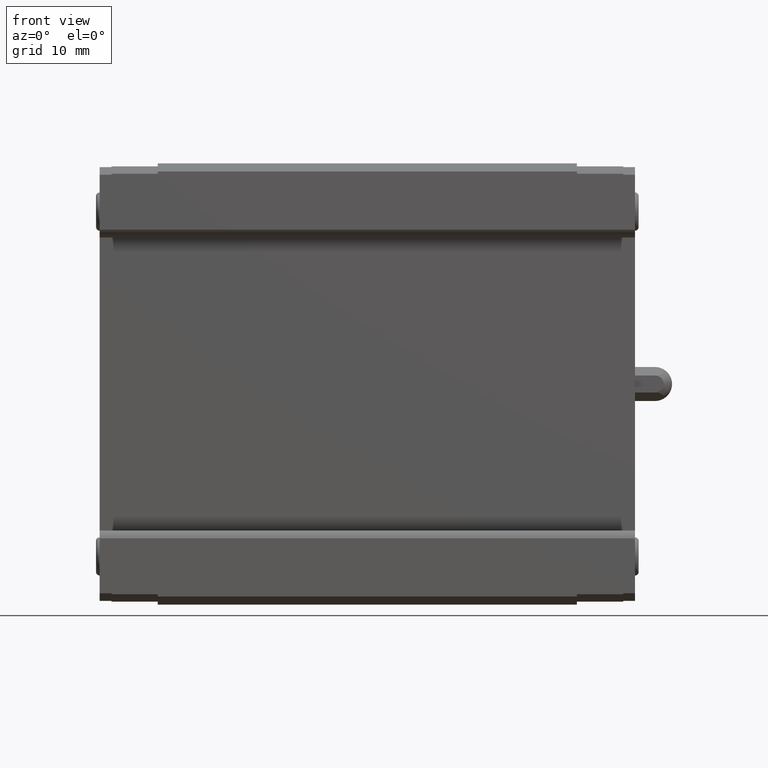
[diagram: clean part render]
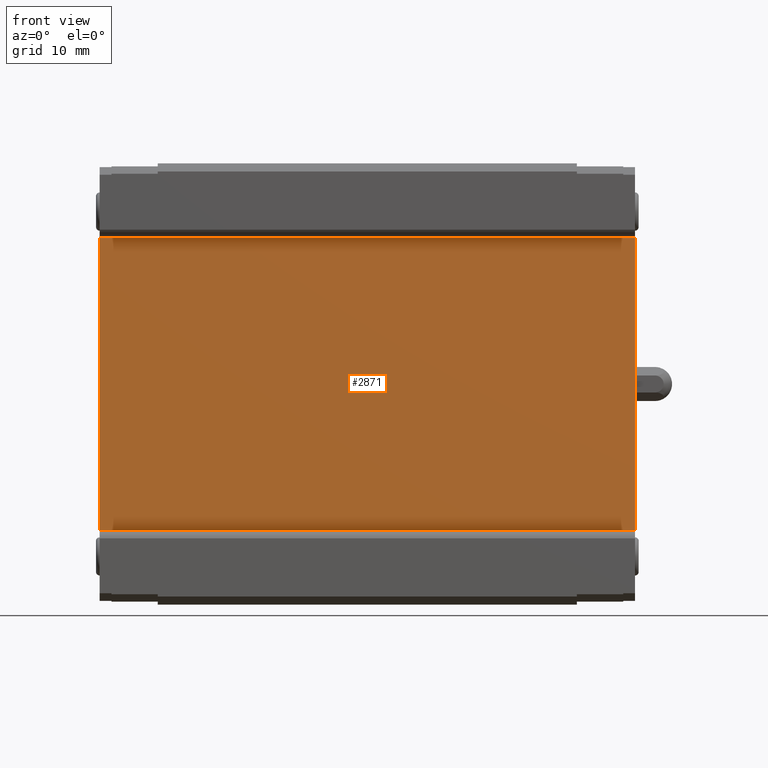
[diagram: same view with one face highlighted and labeled with its STEP entity id]
A machine part, front view. The second image highlights one B-rep face of the part: STEP entity #2871.
In plain terms, the highlighted planar face has unit normal (0, 1, 0).
Its self-contained STEP definition (entity closure, byte-faithful):
#446 = VERTEX_POINT ( 'NONE', #1532 ) ;
#450 = VERTEX_POINT ( 'NONE', #1525 ) ;
#456 = EDGE_CURVE ( 'NONE', #446, #450, #1581, .T. ) ;
#670 = EDGE_LOOP ( 'NONE', ( #2864, #2863, #2860, #2862 ) ) ;
#678 = EDGE_CURVE ( 'NONE', #871, #450, #1955, .T. ) ;
#868 = EDGE_CURVE ( 'NONE', #871, #869, #2297, .T. ) ;
#869 = VERTEX_POINT ( 'NONE', #2293 ) ;
#871 = VERTEX_POINT ( 'NONE', #2352 ) ;
#1525 = CARTESIAN_POINT ( 'NONE',  ( -36.39999999999999100, 6.099999999999999600, 20.50000000000000000 ) ) ;
#1532 = CARTESIAN_POINT ( 'NONE',  ( -36.39999999999999100, 6.099999999999999600, -20.50000000000000000 ) ) ;
#1578 = DIRECTION ( 'NONE',  ( 0.0000000000000000000, 0.0000000000000000000, 1.000000000000000000 ) ) ;
#1579 = VECTOR ( 'NONE', #1578, 1000.000000000000000 ) ;
#1580 = CARTESIAN_POINT ( 'NONE',  ( -36.39999999999999100, 6.099999999999999600, -20.50000000000000000 ) ) ;
#1581 = LINE ( 'NONE', #1580, #1579 ) ;
#1952 = DIRECTION ( 'NONE',  ( -1.000000000000000000, 0.0000000000000000000, 0.0000000000000000000 ) ) ;
#1953 = VECTOR ( 'NONE', #1952, 1000.000000000000000 ) ;
#1954 = CARTESIAN_POINT ( 'NONE',  ( 28.50000000000000000, 6.099999999999999600, 20.50000000000000000 ) ) ;
#1955 = LINE ( 'NONE', #1954, #1953 ) ;
#2293 = CARTESIAN_POINT ( 'NONE',  ( 36.39999999999999100, 6.099999999999999600, -20.50000000000000000 ) ) ;
#2294 = DIRECTION ( 'NONE',  ( 0.0000000000000000000, 0.0000000000000000000, -1.000000000000000000 ) ) ;
#2295 = VECTOR ( 'NONE', #2294, 1000.000000000000000 ) ;
#2296 = CARTESIAN_POINT ( 'NONE',  ( 36.39999999999999100, 6.099999999999999600, 20.50000000000000000 ) ) ;
#2297 = LINE ( 'NONE', #2296, #2295 ) ;
#2352 = CARTESIAN_POINT ( 'NONE',  ( 36.39999999999999100, 6.099999999999999600, 20.50000000000000000 ) ) ;
#2393 = DIRECTION ( 'NONE',  ( 0.0000000000000000000, 0.0000000000000000000, 1.000000000000000000 ) ) ;
#2394 = DIRECTION ( 'NONE',  ( 0.0000000000000000000, 1.000000000000000000, 0.0000000000000000000 ) ) ;
#2395 = CARTESIAN_POINT ( 'NONE',  ( 28.50000000000000000, 6.099999999999999600, 20.50000000000000000 ) ) ;
#2396 = AXIS2_PLACEMENT_3D ( 'NONE', #2395, #2394, #2393 ) ;
#2397 = PLANE ( 'NONE',  #2396 ) ;
#2398 = FACE_OUTER_BOUND ( 'NONE', #670, .T. ) ;
#2410 = DIRECTION ( 'NONE',  ( -1.000000000000000000, 0.0000000000000000000, 0.0000000000000000000 ) ) ;
#2411 = VECTOR ( 'NONE', #2410, 1000.000000000000000 ) ;
#2412 = CARTESIAN_POINT ( 'NONE',  ( 28.50000000000000000, 6.099999999999999600, -20.50000000000000000 ) ) ;
#2413 = LINE ( 'NONE', #2412, #2411 ) ;
#2860 = ORIENTED_EDGE ( 'NONE', *, *, #2861, .F. ) ;
#2861 = EDGE_CURVE ( 'NONE', #869, #446, #2413, .T. ) ;
#2862 = ORIENTED_EDGE ( 'NONE', *, *, #868, .F. ) ;
#2863 = ORIENTED_EDGE ( 'NONE', *, *, #456, .F. ) ;
#2864 = ORIENTED_EDGE ( 'NONE', *, *, #678, .T. ) ;
#2871 = ADVANCED_FACE ( 'NONE', ( #2398 ), #2397, .F. ) ;